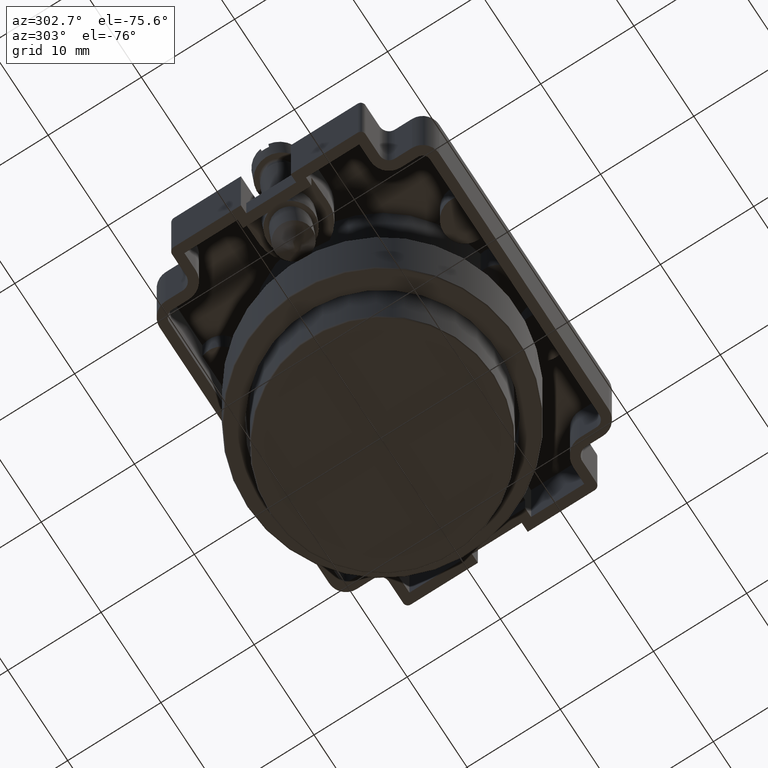
[diagram: clean part render]
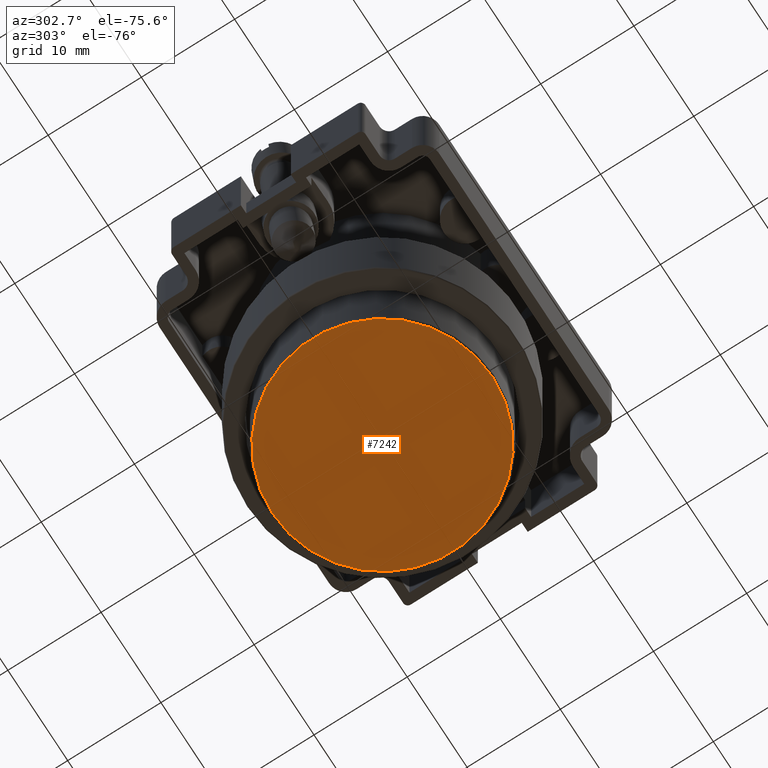
[diagram: same view with one face highlighted and labeled with its STEP entity id]
A machine part, auxiliary view. The second image highlights one B-rep face of the part: STEP entity #7242.
In plain terms, the highlighted planar face has unit normal (0, -0, -1).
Its self-contained STEP definition (entity closure, byte-faithful):
#7202=CARTESIAN_POINT('',(20.229104645123257,11.768314320504651,-2.890071E-015));
#7203=VERTEX_POINT('',#7202);
#7204=CARTESIAN_POINT('',(20.229104645123257,-0.031685679495352,0.0));
#7205=DIRECTION('',(-1.0,0.0,0.0));
#7206=DIRECTION('',(0.0,-1.0,0.0));
#7207=AXIS2_PLACEMENT_3D('',#7204,#7205,#7206);
#7208=CIRCLE('',#7207,11.800000000000004);
#7209=EDGE_CURVE('',#7203,#7203,#7208,.T.);
#7234=CARTESIAN_POINT('',(20.229104645123257,5.968314320504650,0.0));
#7235=DIRECTION('',(1.0,0.0,0.0));
#7236=DIRECTION('',(0.0,0.0,-1.0));
#7237=AXIS2_PLACEMENT_3D('',#7234,#7235,#7236);
#7238=PLANE('',#7237);
#7239=ORIENTED_EDGE('',*,*,#7209,.F.);
#7240=EDGE_LOOP('',(#7239));
#7241=FACE_OUTER_BOUND('',#7240,.T.);
#7242=ADVANCED_FACE('',(#7241),#7238,.T.);